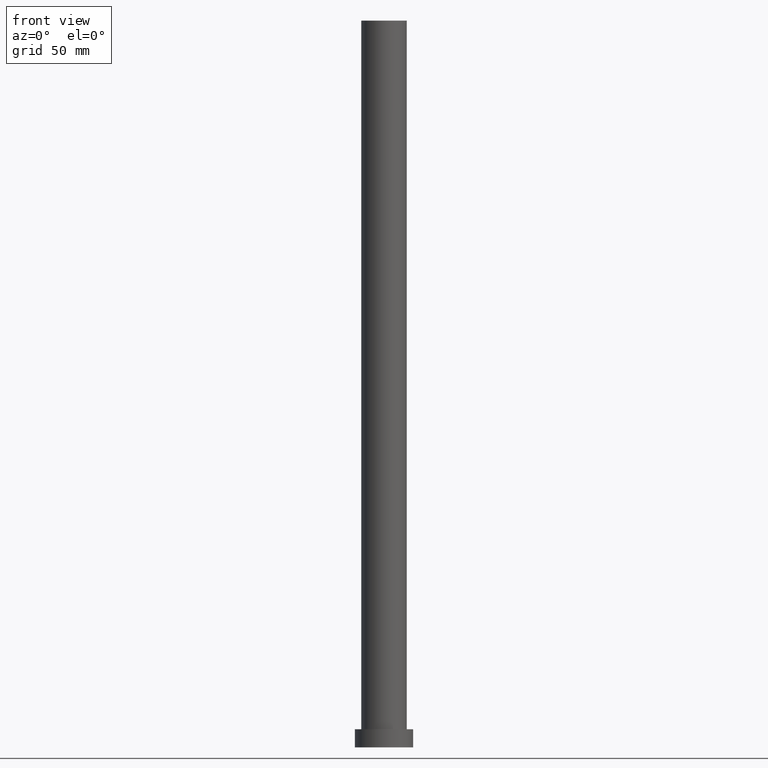
[diagram: clean part render]
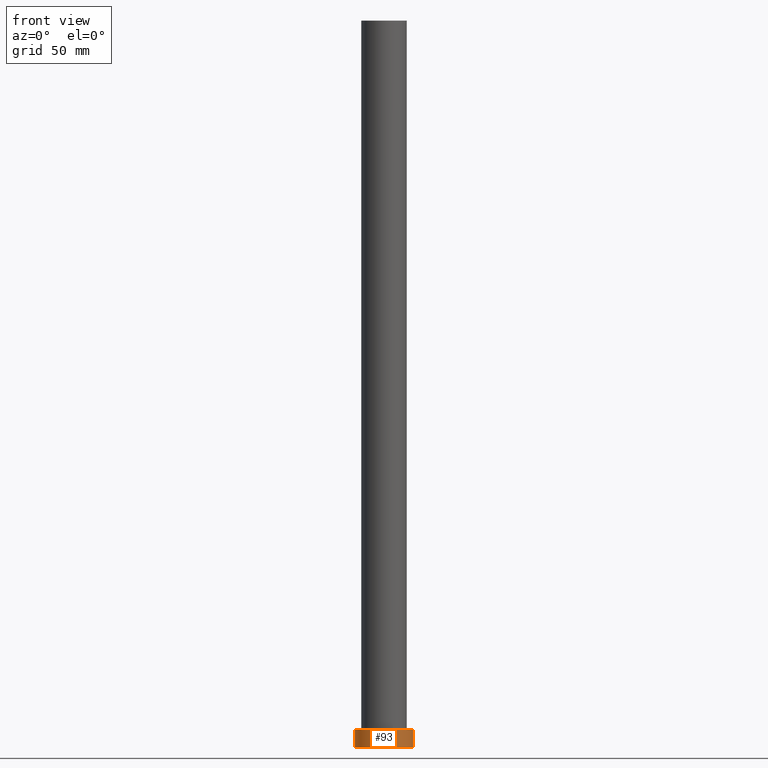
[diagram: same view with one face highlighted and labeled with its STEP entity id]
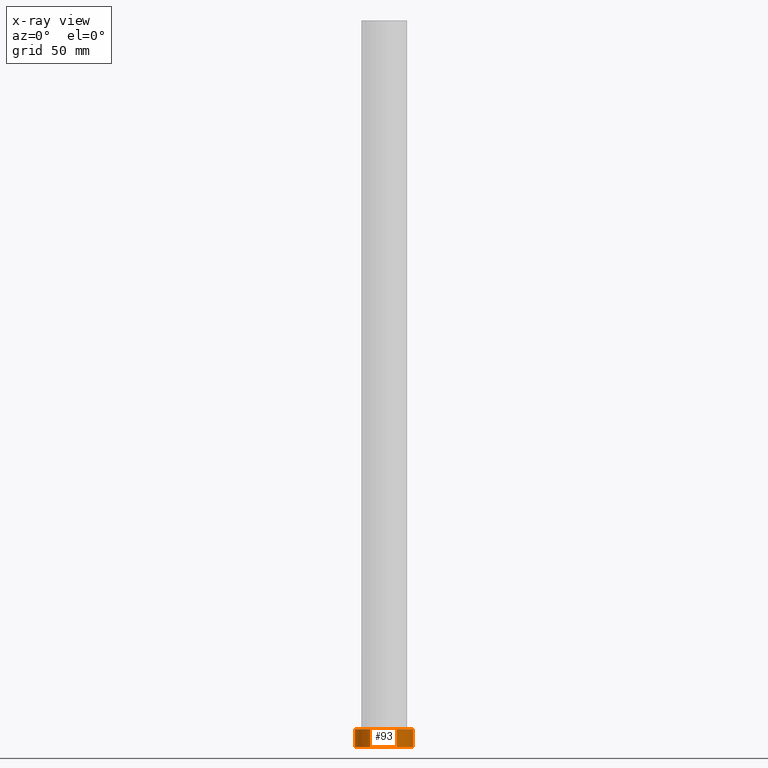
[diagram: x-ray of the same camera — body ghosted, the highlighted face saturated]
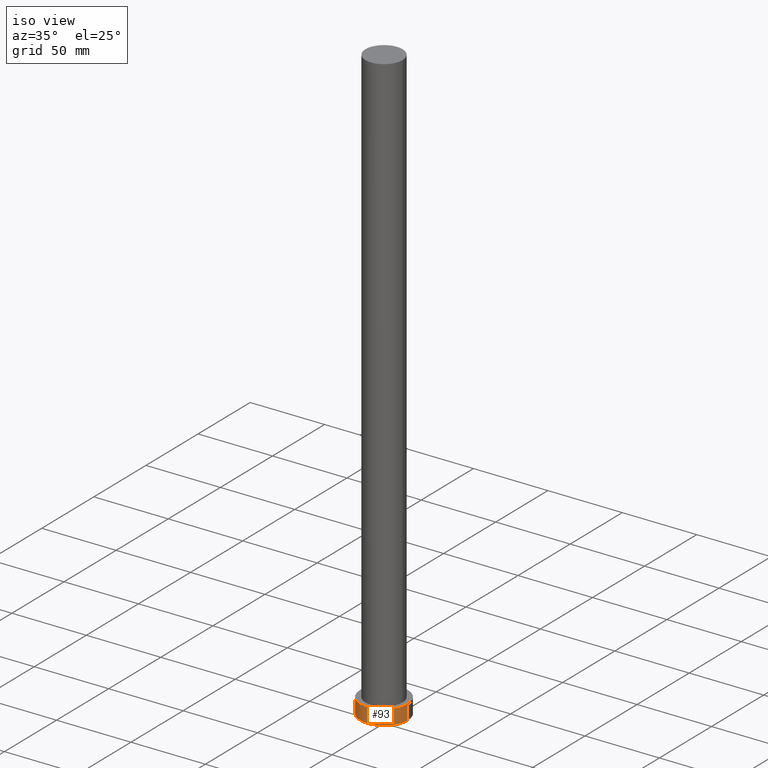
[diagram: same view with one face highlighted and labeled with its STEP entity id]
A machine part, front view. The second image highlights one B-rep face of the part: STEP entity #93.
The next image is the same camera in x-ray: the body ghosted, the highlighted face saturated — about 0% of this face is hidden behind the body in this view.
A second angle (iso view) of the same face is appended — the face is thin or edge-on in the first view.
In plain terms, the highlighted cylindrical surface (edge-blend (fillet) strip) has radius 16 mm, axis along (-0, -0, -1).
Its self-contained STEP definition (entity closure, byte-faithful):
#10 = EDGE_CURVE ( 'NONE', #18, #124, #103, .T. ) ;
#18 = VERTEX_POINT ( 'NONE', #229 ) ;
#20 = VERTEX_POINT ( 'NONE', #205 ) ;
#39 = CARTESIAN_POINT ( 'NONE',  ( 16.00000000000000000, 1.959434878635765131E-15, 10.00000000000000000 ) ) ;
#51 = CARTESIAN_POINT ( 'NONE',  ( 16.00000000000000000, 1.959434878635765131E-15, 10.00000000000000000 ) ) ;
#59 = LINE ( 'NONE', #64, #104 ) ;
#61 = CARTESIAN_POINT ( 'NONE',  ( 0.000000000000000000, 0.000000000000000000, 10.00000000000000000 ) ) ;
#64 = CARTESIAN_POINT ( 'NONE',  ( -16.00000000000000000, 0.000000000000000000, 10.00000000000000000 ) ) ;
#65 = CARTESIAN_POINT ( 'NONE',  ( 0.000000000000000000, 0.000000000000000000, 0.000000000000000000 ) ) ;
#76 = VECTOR ( 'NONE', #185, 1000.000000000000000 ) ;
#93 = ADVANCED_FACE ( 'NONE', ( #94 ), #160, .T. ) ;
#94 = FACE_OUTER_BOUND ( 'NONE', #116, .T. ) ;
#95 = DIRECTION ( 'NONE',  ( 1.000000000000000000, 0.000000000000000000, 0.000000000000000000 ) ) ;
#97 = DIRECTION ( 'NONE',  ( -0.000000000000000000, -0.000000000000000000, -1.000000000000000000 ) ) ;
#103 = CIRCLE ( 'NONE', #152, 16.00000000000000000 ) ;
#104 = VECTOR ( 'NONE', #97, 1000.000000000000000 ) ;
#109 = CIRCLE ( 'NONE', #209, 16.00000000000000000 ) ;
#116 = EDGE_LOOP ( 'NONE', ( #142, #255, #202, #139 ) ) ;
#124 = VERTEX_POINT ( 'NONE', #51 ) ;
#136 = CARTESIAN_POINT ( 'NONE',  ( 0.000000000000000000, 0.000000000000000000, 10.00000000000000000 ) ) ;
#139 = ORIENTED_EDGE ( 'NONE', *, *, #236, .T. ) ;
#142 = ORIENTED_EDGE ( 'NONE', *, *, #237, .F. ) ;
#144 = DIRECTION ( 'NONE',  ( 0.000000000000000000, 0.000000000000000000, 1.000000000000000000 ) ) ;
#152 = AXIS2_PLACEMENT_3D ( 'NONE', #61, #144, #95 ) ;
#159 = DIRECTION ( 'NONE',  ( 1.000000000000000000, 0.000000000000000000, 0.000000000000000000 ) ) ;
#160 = CYLINDRICAL_SURFACE ( 'NONE', #242, 16.00000000000000000 ) ;
#165 = EDGE_CURVE ( 'NONE', #18, #20, #59, .T. ) ;
#185 = DIRECTION ( 'NONE',  ( -0.000000000000000000, -0.000000000000000000, -1.000000000000000000 ) ) ;
#201 = CARTESIAN_POINT ( 'NONE',  ( 16.00000000000000000, 1.959434878635765131E-15, 0.000000000000000000 ) ) ;
#202 = ORIENTED_EDGE ( 'NONE', *, *, #165, .T. ) ;
#205 = CARTESIAN_POINT ( 'NONE',  ( -16.00000000000000000, 0.000000000000000000, 0.000000000000000000 ) ) ;
#209 = AXIS2_PLACEMENT_3D ( 'NONE', #65, #230, #159 ) ;
#212 = DIRECTION ( 'NONE',  ( -0.000000000000000000, -0.000000000000000000, -1.000000000000000000 ) ) ;
#229 = CARTESIAN_POINT ( 'NONE',  ( -16.00000000000000000, 0.000000000000000000, 10.00000000000000000 ) ) ;
#230 = DIRECTION ( 'NONE',  ( 0.000000000000000000, 0.000000000000000000, 1.000000000000000000 ) ) ;
#233 = LINE ( 'NONE', #39, #76 ) ;
#236 = EDGE_CURVE ( 'NONE', #20, #238, #109, .T. ) ;
#237 = EDGE_CURVE ( 'NONE', #124, #238, #233, .T. ) ;
#238 = VERTEX_POINT ( 'NONE', #201 ) ;
#242 = AXIS2_PLACEMENT_3D ( 'NONE', #136, #212, #248 ) ;
#248 = DIRECTION ( 'NONE',  ( -1.000000000000000000, 0.000000000000000000, 0.000000000000000000 ) ) ;
#255 = ORIENTED_EDGE ( 'NONE', *, *, #10, .F. ) ;